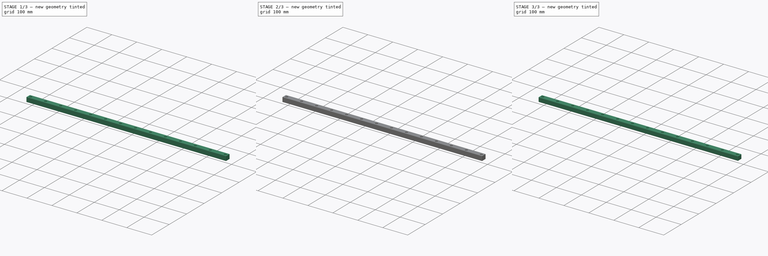
[diagram: build sequence overview — one tinted view per stage of 3, left to right]
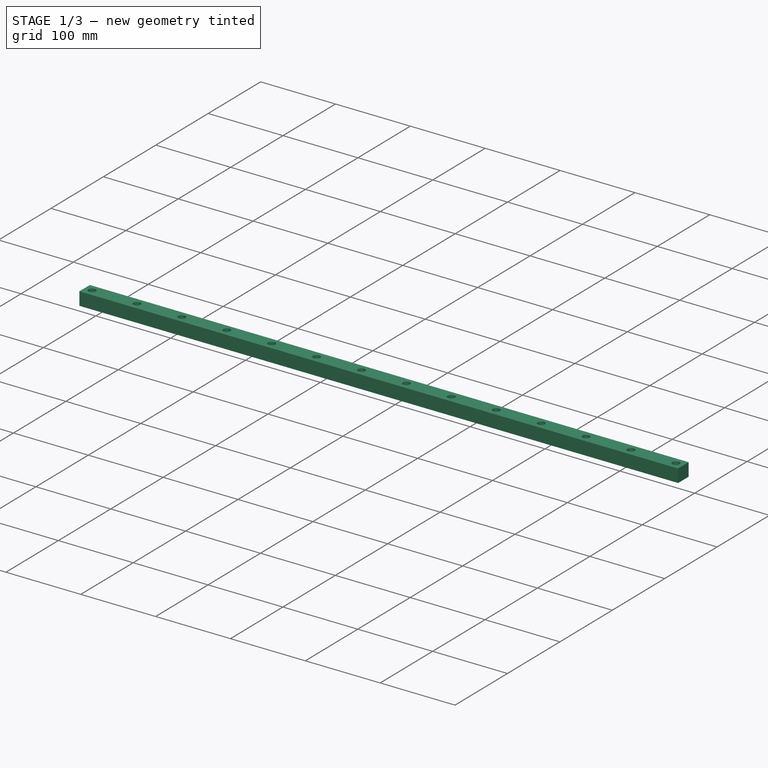
[diagram: stage 1 of 3 — iso view after this stage's code; geometry added in this stage tinted green]
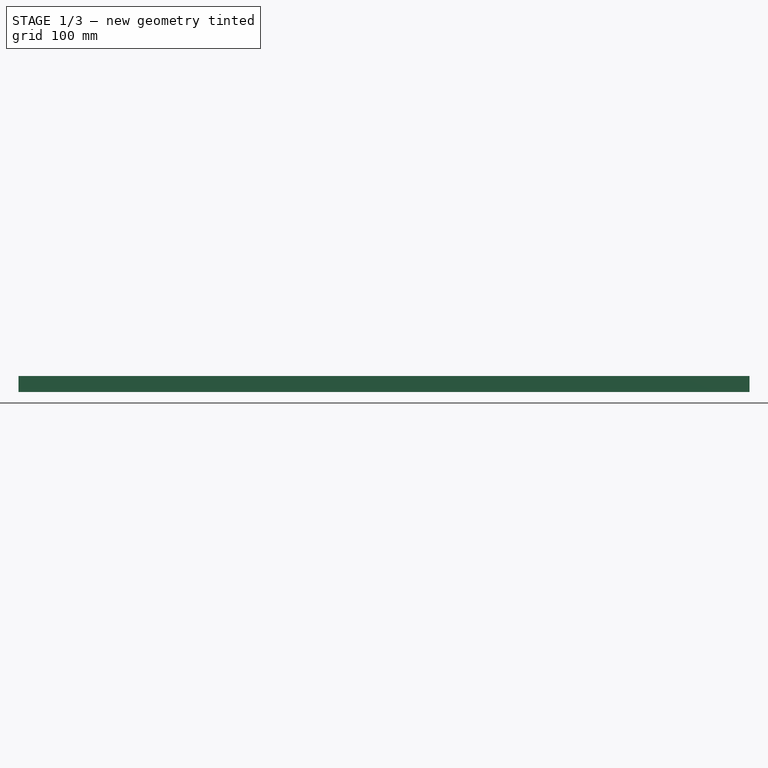
[diagram: stage 1 of 3 — front view after this stage's code; geometry added in this stage tinted green]
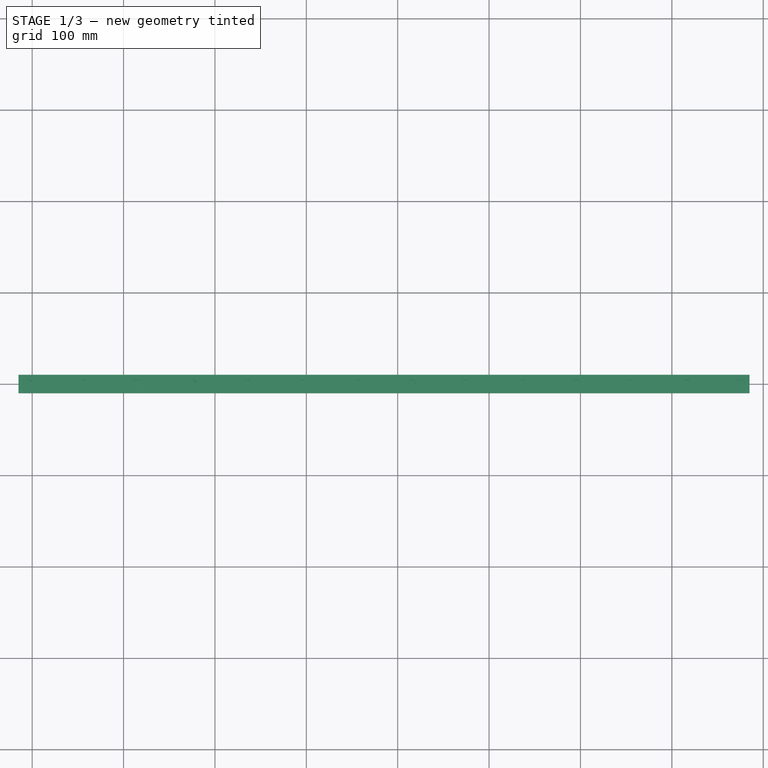
[diagram: stage 1 of 3 — top view after this stage's code; geometry added in this stage tinted green]
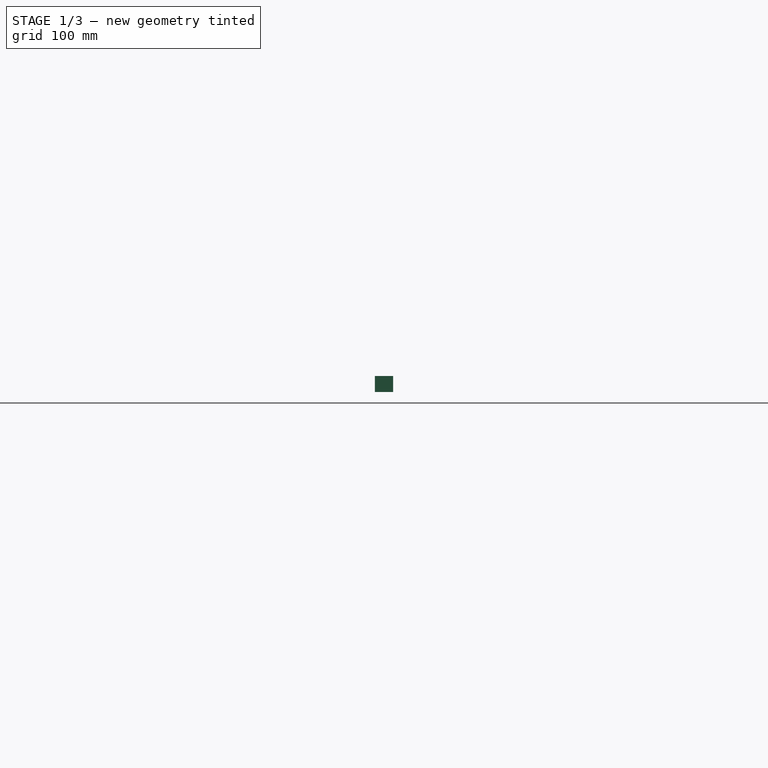
[diagram: stage 1 of 3 — right view after this stage's code; geometry added in this stage tinted green]
FCSTD DOCUMENT  (FreeCAD 0.19R24366 (Git))
Label: HGR20 slider rail 800mm
License: All rights reserved
LicenseURL: http://en.wikipedia.org/wiki/All_rights_reserved
objects: Sketcher::SketchObject×4, PartDesign::Pocket×3, PartDesign::Pad×1, PartDesign::Chamfer×1, PartDesign::Body×1
note: 15 computed .brp shape members not serialized (recipe doc carries the construction recipe); baked Part::Feature solids carry a one-line shape summary decoded from their .brp

FEATURE [Sketcher::SketchObject] Sketch  label="Basic rail profile"
  FullyConstrained = true
  MapMode = 5
  Support = -> [XY_Plane]
  sketch-geometry (4):
    g0: LineSegment StartX=-15 StartY=10 StartZ=0 EndX=785 EndY=10 EndZ=0
    g1: LineSegment StartX=785 StartY=10 StartZ=0 EndX=785 EndY=-10 EndZ=0
    g2: LineSegment StartX=785 StartY=-10 StartZ=0 EndX=-15 EndY=-10 EndZ=0
    g3: LineSegment StartX=-15 StartY=-10 StartZ=0 EndX=-15 EndY=10 EndZ=0
  constraints (11):
    c: Coincident(g0,g1)
    c: Coincident(g1,g2)
    c: Coincident(g2,g3)
    c: Coincident(g3,g0)
    c: Horizontal(g0)
    c: Vertical(g1)
    c: DistanceX(g2,g2) = 800  'LENGTH'
    c: Equal(g3,g1)
    c: Symmetric(g0,g2,g-1)
    c: DistanceX(g0,g-1) = 15
    c: DistanceY(g3,g3) = 20
FEATURE [PartDesign::Pad] Pad  label="Rail height"
  Direction = (1,1,1)
  Length = 17.5
  Length2 = 100
  Profile = -> Sketch
  Type = 0
FEATURE [Sketcher::SketchObject] Sketch001  label="Cap head holes"
  ExternalGeometry = -> [Pad]
  FullyConstrained = true
  MapMode = 5
  Placement = pos=(0,0,17.5) rot=(0,0,1;0rad)
  Support = -> [Pad]
  sketch-geometry (27):
    g0: Circle CenterX=-5 CenterY=0 CenterZ=0 NormalX=0 NormalY=0 NormalZ=1 AngleXU=0 Radius=4.75
    g1: Circle CenterX=55 CenterY=0 CenterZ=0 NormalX=0 NormalY=0 NormalZ=1 AngleXU=0 Radius=4.75
    g2: LineSegment StartX=-5 StartY=0 StartZ=0 EndX=55 EndY=0 EndZ=0
    g3: Circle CenterX=115 CenterY=-2.94e-14 CenterZ=0 NormalX=0 NormalY=0 NormalZ=1 AngleXU=0 Radius=4.75
    g4: LineSegment StartX=55 StartY=0 StartZ=0 EndX=115 EndY=-2.94e-14 EndZ=0
    g5: Circle CenterX=175 CenterY=-3.45e-14 CenterZ=0 NormalX=0 NormalY=0 NormalZ=1 AngleXU=0 Radius=4.75
    g6: LineSegment StartX=115 StartY=-2.94e-14 StartZ=0 EndX=175 EndY=-3.45e-14 EndZ=0
    g7: Circle CenterX=235 CenterY=-3.49e-14 CenterZ=0 NormalX=0 NormalY=0 NormalZ=1 AngleXU=0 Radius=4.75
    g8: LineSegment StartX=175 StartY=-3.45e-14 StartZ=0 EndX=235 EndY=-3.49e-14 EndZ=0
    g9: Circle CenterX=295 CenterY=-3.49e-14 CenterZ=0 NormalX=0 NormalY=0 NormalZ=1 AngleXU=0 Radius=4.75
    g10: LineSegment StartX=235 StartY=-3.49e-14 StartZ=0 EndX=295 EndY=-3.49e-14 EndZ=0
    g11: Circle CenterX=355 CenterY=-3.48e-14 CenterZ=0 NormalX=0 NormalY=0 NormalZ=1 AngleXU=0 Radius=4.75
    g12: LineSegment StartX=295 StartY=-3.49e-14 StartZ=0 EndX=355 EndY=-3.48e-14 EndZ=0
    g13: Circle CenterX=415 CenterY=-3.48e-14 CenterZ=0 NormalX=0 NormalY=0 NormalZ=1 AngleXU=0 Radius=4.75
    g14: LineSegment StartX=355 StartY=-3.48e-14 StartZ=0 EndX=415 EndY=-3.48e-14 EndZ=0
    g15: Circle CenterX=475 CenterY=-3.48e-14 CenterZ=0 NormalX=0 NormalY=0 NormalZ=1 AngleXU=0 Radius=4.75
    g16: LineSegment StartX=415 StartY=-3.48e-14 StartZ=0 EndX=475 EndY=-3.48e-14 EndZ=0
    g17: Circle CenterX=535 CenterY=-3.48e-14 CenterZ=0 NormalX=0 NormalY=0 NormalZ=1 AngleXU=0 Radius=4.75
    g18: LineSegment StartX=475 StartY=-3.48e-14 StartZ=0 EndX=535 EndY=-3.48e-14 EndZ=0
    g19: Circle CenterX=595 CenterY=-3.47e-14 CenterZ=0 NormalX=0 NormalY=0 NormalZ=1 AngleXU=0 Radius=4.75
    g20: LineSegment StartX=535 StartY=-3.48e-14 StartZ=0 EndX=595 EndY=-3.47e-14 EndZ=0
    g21: Circle CenterX=655 CenterY=-3.47e-14 CenterZ=0 NormalX=0 NormalY=0 NormalZ=1 AngleXU=0 Radius=4.75
    g22: LineSegment StartX=595 StartY=-3.47e-14 StartZ=0 EndX=655 EndY=-3.47e-14 EndZ=0
    g23: Circle CenterX=715 CenterY=-3.51e-14 CenterZ=0 NormalX=0 NormalY=0 NormalZ=1 AngleXU=0 Radius=4.75
    g24: LineSegment StartX=655 StartY=-3.47e-14 StartZ=0 EndX=715 EndY=-3.51e-14 EndZ=0
    g25: Circle CenterX=775 CenterY=-3.72e-14 CenterZ=0 NormalX=0 NormalY=0 NormalZ=1 AngleXU=0 Radius=4.75
    g26: LineSegment StartX=715 StartY=-3.51e-14 StartZ=0 EndX=775 EndY=-3.72e-14 EndZ=0
  constraints (70):
    c: PointOnObject(g0,g-1)
    c: Radius(g0) = 4.75  'D'
    c: Equal(g0,g1) = 3
    c: Coincident(g0,g2)
    c: Coincident(g1,g2)
    c: Angle(g2) = 0
    c: Equal(g0,g3) = 3
    c: Coincident(g1,g4)
    c: Coincident(g3,g4)
    c: Equal(g2,g4)
    c: Parallel(g4,g2)
    c: Equal(g0,g5) = 3
    c: Coincident(g3,g6)
    c: Coincident(g5,g6)
    c: Equal(g2,g6)
    c: Parallel(g6,g2)
    c: Equal(g0,g7) = 3
    c: Coincident(g5,g8)
    c: Coincident(g7,g8)
    c: Equal(g2,g8)
    c: Parallel(g8,g2)
    c: Equal(g0,g9) = 3
    c: Coincident(g7,g10)
    c: Coincident(g9,g10)
    c: Equal(g2,g10)
    c: Parallel(g10,g2)
    c: Equal(g0,g11) = 3
    c: Coincident(g9,g12)
    c: Coincident(g11,g12)
    c: Equal(g2,g12)
    c: Parallel(g12,g2)
    c: Equal(g0,g13) = 3
    c: Coincident(g11,g14)
    c: Coincident(g13,g14)
    c: Equal(g2,g14)
    c: Parallel(g14,g2)
    c: Equal(g0,g15) = 3
    c: Coincident(g13,g16)
    c: Coincident(g15,g16)
    c: Equal(g2,g16)
    c: Parallel(g16,g2)
    c: Equal(g0,g17) = 3
    c: Coincident(g15,g18)
    c: Coincident(g17,g18)
    c: Equal(g2,g18)
    c: Parallel(g18,g2)
    c: Equal(g0,g19) = 3
    c: Coincident(g17,g20)
    c: Coincident(g19,g20)
    c: Equal(g2,g20)
    c: Parallel(g20,g2)
    c: Equal(g0,g21) = 3
    c: Coincident(g19,g22)
    c: Coincident(g21,g22)
    c: Equal(g2,g22)
    c: Parallel(g22,g2)
    c: Equal(g0,g23) = 3
    c: Coincident(g21,g24)
    c: Coincident(g23,g24)
    c: Equal(g2,g24)
    c: Parallel(g24,g2)
    c: Equal(g0,g25) = 3
    c: Coincident(g23,g26)
    c: Coincident(g25,g26)
    c: Equal(g2,g26)
    c: Parallel(g26,g2)
    c: DistanceX(g0,g1) = 60  'P'
    c: DistanceX(g25,g-3) = 10
    c: DistanceX(g0,g-1) = 5
    c: DistanceX(g-4,g0) = 10
FEATURE [PartDesign::Pocket] Pocket  label="Cap head hole depth"
  BaseFeature = -> Pad
  Length = 8.5
  Length2 = 100
  Profile = -> Sketch001
  Type = 0
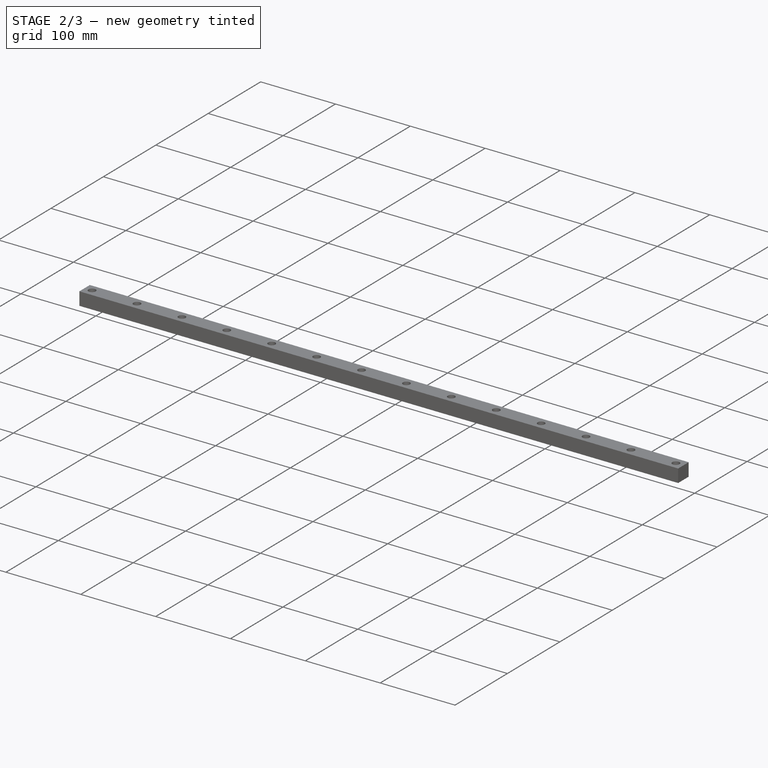
[diagram: stage 2 of 3 — iso view after this stage's code; geometry added in this stage tinted green]
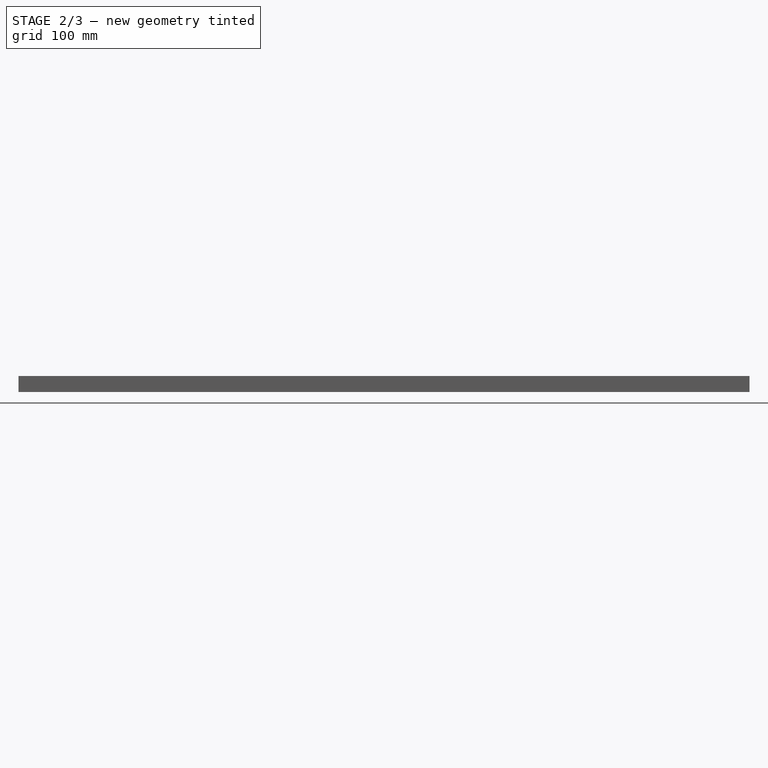
[diagram: stage 2 of 3 — front view after this stage's code; geometry added in this stage tinted green]
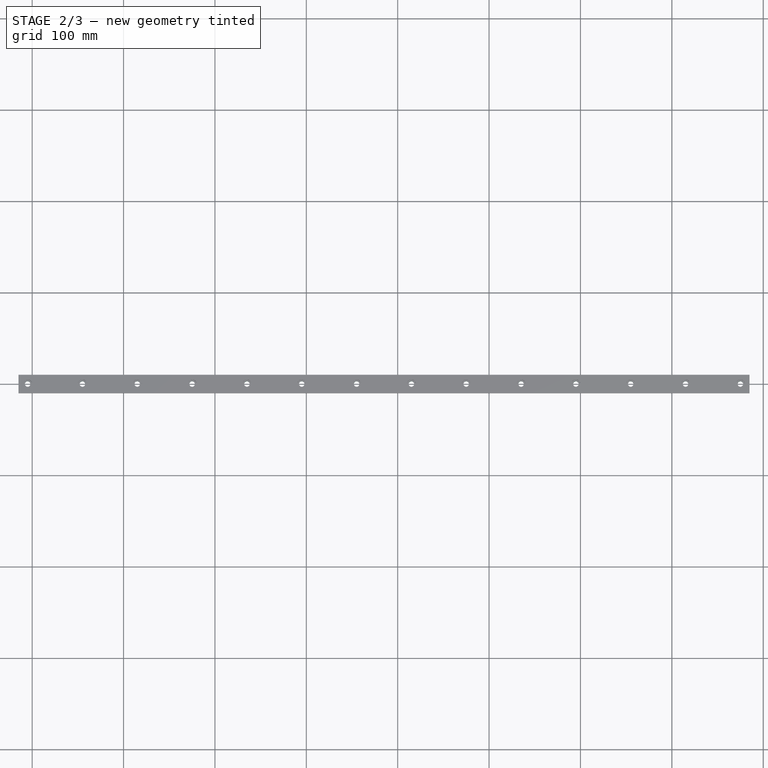
[diagram: stage 2 of 3 — top view after this stage's code; geometry added in this stage tinted green]
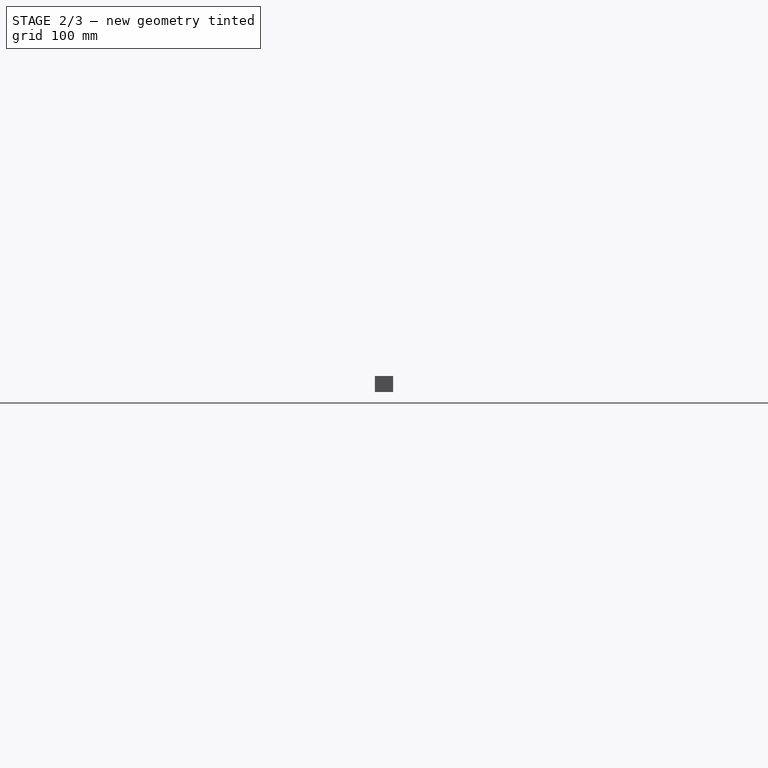
[diagram: stage 2 of 3 — right view after this stage's code; geometry added in this stage tinted green]
FEATURE [Sketcher::SketchObject] Sketch002  label="Through holes"
  FullyConstrained = true
  MapMode = 5
  Placement = pos=(0,0,17.5) rot=(0,0,1;0rad)
  Support = -> [Pocket]
  sketch-geometry (27):
    g0: Circle CenterX=-5 CenterY=0 CenterZ=0 NormalX=0 NormalY=0 NormalZ=1 AngleXU=0 Radius=3
    g1: Circle CenterX=55 CenterY=1e-16 CenterZ=0 NormalX=0 NormalY=0 NormalZ=1 AngleXU=0 Radius=3
    g2: LineSegment StartX=-5 StartY=0 StartZ=0 EndX=55 EndY=1e-16 EndZ=0
    g3: Circle CenterX=115 CenterY=4e-16 CenterZ=0 NormalX=0 NormalY=0 NormalZ=1 AngleXU=0 Radius=3
    g4: LineSegment StartX=55 StartY=1e-16 StartZ=0 EndX=115 EndY=4e-16 EndZ=0
    g5: Circle CenterX=175 CenterY=5e-16 CenterZ=0 NormalX=0 NormalY=0 NormalZ=1 AngleXU=0 Radius=3
    g6: LineSegment StartX=115 StartY=4e-16 StartZ=0 EndX=175 EndY=5e-16 EndZ=0
    g7: Circle CenterX=235 CenterY=6e-16 CenterZ=0 NormalX=0 NormalY=0 NormalZ=1 AngleXU=0 Radius=3
    g8: LineSegment StartX=175 StartY=5e-16 StartZ=0 EndX=235 EndY=6e-16 EndZ=0
    g9: Circle CenterX=295 CenterY=7e-16 CenterZ=0 NormalX=0 NormalY=0 NormalZ=1 AngleXU=0 Radius=3
    g10: LineSegment StartX=235 StartY=6e-16 StartZ=0 EndX=295 EndY=7e-16 EndZ=0
    g11: Circle CenterX=355 CenterY=8e-16 CenterZ=0 NormalX=0 NormalY=0 NormalZ=1 AngleXU=0 Radius=3
    g12: LineSegment StartX=295 StartY=7e-16 StartZ=0 EndX=355 EndY=8e-16 EndZ=0
    g13: Circle CenterX=415 CenterY=9e-16 CenterZ=0 NormalX=0 NormalY=0 NormalZ=1 AngleXU=0 Radius=3
    g14: LineSegment StartX=355 StartY=8e-16 StartZ=0 EndX=415 EndY=9e-16 EndZ=0
    g15: Circle CenterX=475 CenterY=1e-15 CenterZ=0 NormalX=0 NormalY=0 NormalZ=1 AngleXU=0 Radius=3
    g16: LineSegment StartX=415 StartY=9e-16 StartZ=0 EndX=475 EndY=1e-15 EndZ=0
    g17: Circle CenterX=535 CenterY=1.2e-15 CenterZ=0 NormalX=0 NormalY=0 NormalZ=1 AngleXU=0 Radius=3
    g18: LineSegment StartX=475 StartY=1e-15 StartZ=0 EndX=535 EndY=1.2e-15 EndZ=0
    g19: Circle CenterX=595 CenterY=1.3e-15 CenterZ=0 NormalX=0 NormalY=0 NormalZ=1 AngleXU=0 Radius=3
    g20: LineSegment StartX=535 StartY=1.2e-15 StartZ=0 EndX=595 EndY=1.3e-15 EndZ=0
    g21: Circle CenterX=655 CenterY=1.4e-15 CenterZ=0 NormalX=0 NormalY=0 NormalZ=1 AngleXU=0 Radius=3
    g22: LineSegment StartX=595 StartY=1.3e-15 StartZ=0 EndX=655 EndY=1.4e-15 EndZ=0
    g23: Circle CenterX=715 CenterY=1.5e-15 CenterZ=0 NormalX=0 NormalY=0 NormalZ=1 AngleXU=0 Radius=3
    g24: LineSegment StartX=655 StartY=1.4e-15 StartZ=0 EndX=715 EndY=1.5e-15 EndZ=0
    g25: Circle CenterX=775 CenterY=1.6e-15 CenterZ=0 NormalX=0 NormalY=0 NormalZ=1 AngleXU=0 Radius=3
    g26: LineSegment StartX=715 StartY=1.5e-15 StartZ=0 EndX=775 EndY=1.6e-15 EndZ=0
  constraints (68):
    c: PointOnObject(g0,g-1)
    c: Radius(g0) = 3  'd'
    c: Equal(g0,g1) = 1.75
    c: Coincident(g0,g2)
    c: Coincident(g1,g2)
    c: Angle(g2) = 0
    c: Equal(g0,g3) = 1.75
    c: Coincident(g1,g4)
    c: Coincident(g3,g4)
    c: Equal(g2,g4)
    c: Parallel(g4,g2)
    c: Equal(g0,g5) = 1.75
    c: Coincident(g3,g6)
    c: Coincident(g5,g6)
    c: Equal(g2,g6)
    c: Parallel(g6,g2)
    c: Equal(g0,g7) = 1.75
    c: Coincident(g5,g8)
    c: Coincident(g7,g8)
    c: Equal(g2,g8)
    c: Parallel(g8,g2)
    c: Equal(g0,g9) = 1.75
    c: Coincident(g7,g10)
    c: Coincident(g9,g10)
    c: Equal(g2,g10)
    c: Parallel(g10,g2)
    c: Equal(g0,g11) = 1.75
    c: Coincident(g9,g12)
    c: Coincident(g11,g12)
    c: Equal(g2,g12)
    c: Parallel(g12,g2)
    c: Equal(g0,g13) = 1.75
    c: Coincident(g11,g14)
    c: Coincident(g13,g14)
    c: Equal(g2,g14)
    c: Parallel(g14,g2)
    c: Equal(g0,g15) = 1.75
    c: Coincident(g13,g16)
    c: Coincident(g15,g16)
    c: Equal(g2,g16)
    c: Parallel(g16,g2)
    c: Equal(g0,g17) = 1.75
    c: Coincident(g15,g18)
    c: Coincident(g17,g18)
    c: Equal(g2,g18)
    c: Parallel(g18,g2)
    c: Equal(g0,g19) = 1.75
    c: Coincident(g17,g20)
    c: Coincident(g19,g20)
    c: Equal(g2,g20)
    c: Parallel(g20,g2)
    c: Equal(g0,g21) = 1.75
    c: Coincident(g19,g22)
    c: Coincident(g21,g22)
    c: Equal(g2,g22)
    c: Parallel(g22,g2)
    c: Equal(g0,g23) = 1.75
    c: Coincident(g21,g24)
    c: Coincident(g23,g24)
    c: Equal(g2,g24)
    c: Parallel(g24,g2)
    c: Equal(g0,g25) = 1.75
    c: Coincident(g23,g26)
    c: Coincident(g25,g26)
    c: Equal(g2,g26)
    c: Parallel(g26,g2)
    c: DistanceX(g0,g1) = 60  'P'
    c: DistanceX(g0,g-1) = 5
FEATURE [PartDesign::Pocket] Pocket001  label="Through hole depth"
  BaseFeature = -> Pocket
  Length = 5
  Length2 = 100
  Profile = -> Sketch002
  Type = 1
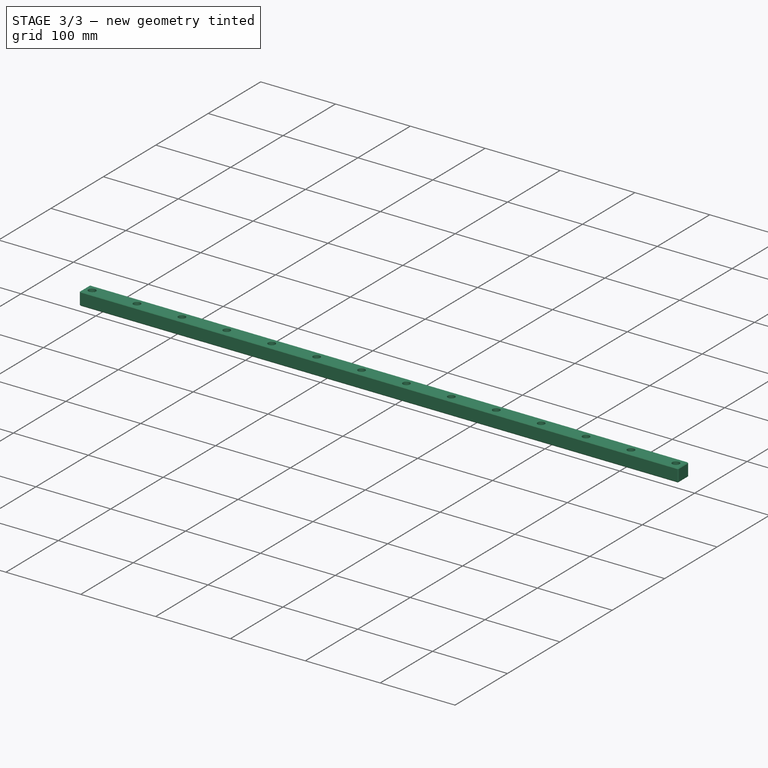
[diagram: stage 3 of 3 — iso view after this stage's code; geometry added in this stage tinted green]
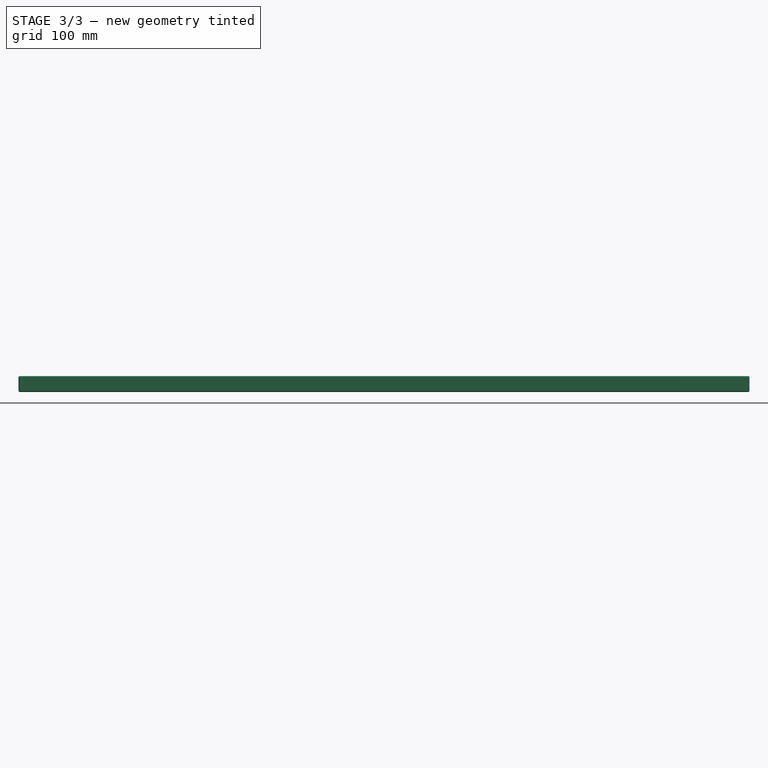
[diagram: stage 3 of 3 — front view after this stage's code; geometry added in this stage tinted green]
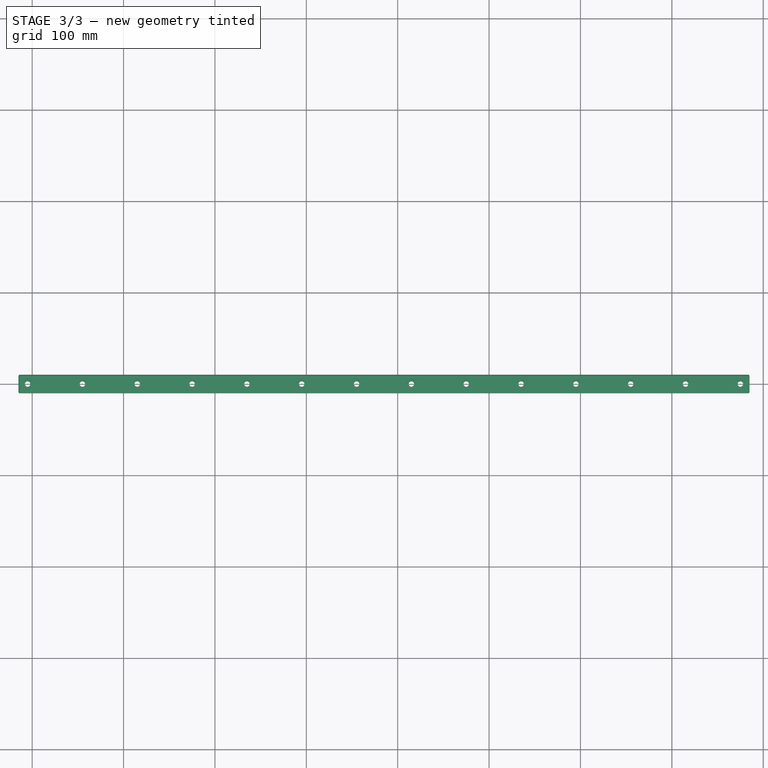
[diagram: stage 3 of 3 — top view after this stage's code; geometry added in this stage tinted green]
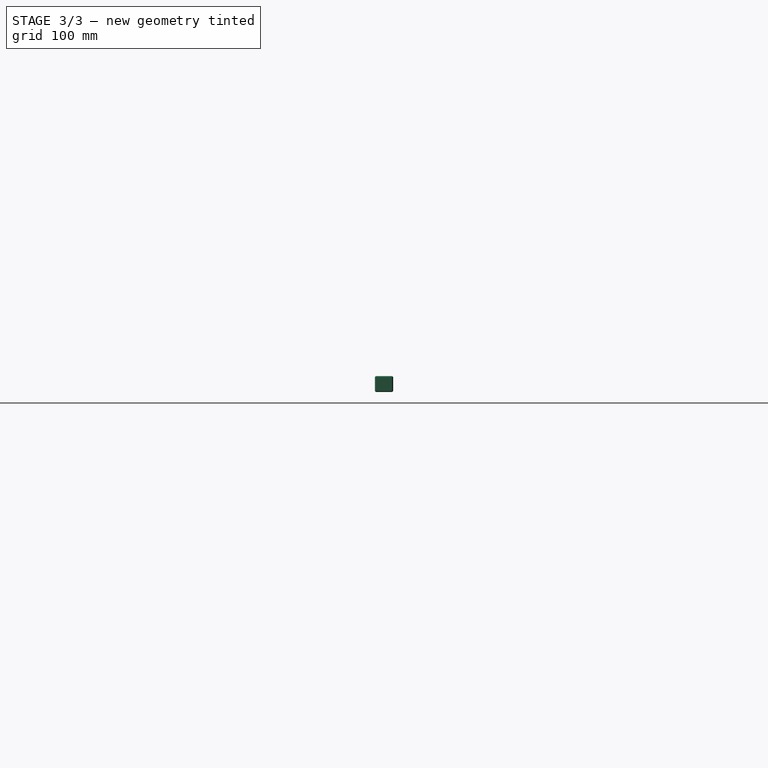
[diagram: stage 3 of 3 — right view after this stage's code; geometry added in this stage tinted green]
FEATURE [PartDesign::Chamfer] Chamfer  label="Edge chamfers"
  Angle = 45
  Base = -> Pocket001 [Edge10,Edge8,Edge9,Edge2,Edge4,Edge11,Edge3,Edge1,Edge7,Edge5,Edge6,Edge26]
  BaseFeature = -> Pocket001
  ChamferType = 0
  FlipDirection = false
  Size = 1
  Size2 = 1
  SupportTransform = false
FEATURE [Sketcher::SketchObject] Sketch003  label="Reference face -15mm"
  FullyConstrained = true
  MapMode = 5
  Placement = pos=(0,0,0) rot=(0.57735,0.57735,0.57735;2.0944rad)
  Support = -> [YZ_Plane]
  sketch-geometry (4):
    g0: LineSegment StartX=2.5 StartY=17.5 StartZ=0 EndX=-2.5 EndY=17.5 EndZ=0
    g1: LineSegment StartX=-2.5 StartY=17.5 StartZ=0 EndX=-2.5 EndY=12.5 EndZ=0
    g2: LineSegment StartX=-2.5 StartY=12.5 StartZ=0 EndX=2.5 EndY=12.5 EndZ=0
    g3: LineSegment StartX=2.5 StartY=12.5 StartZ=0 EndX=2.5 EndY=17.5 EndZ=0
  constraints (11):
    c: Coincident(g0,g1)
    c: Coincident(g1,g2)
    c: Coincident(g2,g3)
    c: Coincident(g3,g0)
    c: Horizontal(g0)
    c: Vertical(g1)
    c: Vertical(g3)
    c: Symmetric(g1,g2,g-2)
    c: Equal(g0,g3)
    c: DistanceX(g0,g0) = 5
    c: DistanceY(g-1,g0) = 17.5
FEATURE [PartDesign::Pocket] Pocket002  label="Reference face hidden plane"
  BaseFeature = -> Chamfer
  Length = 4
  Length2 = 100
  Profile = -> Sketch003
  Type = 0
FEATURE [PartDesign::Body] Body
  Group = -> [Sketch,Pad,Sketch001,Pocket,Sketch002,Pocket001,Chamfer,Sketch003,Pocket002]
  Origin = -> Origin
  Tip = -> Pocket002
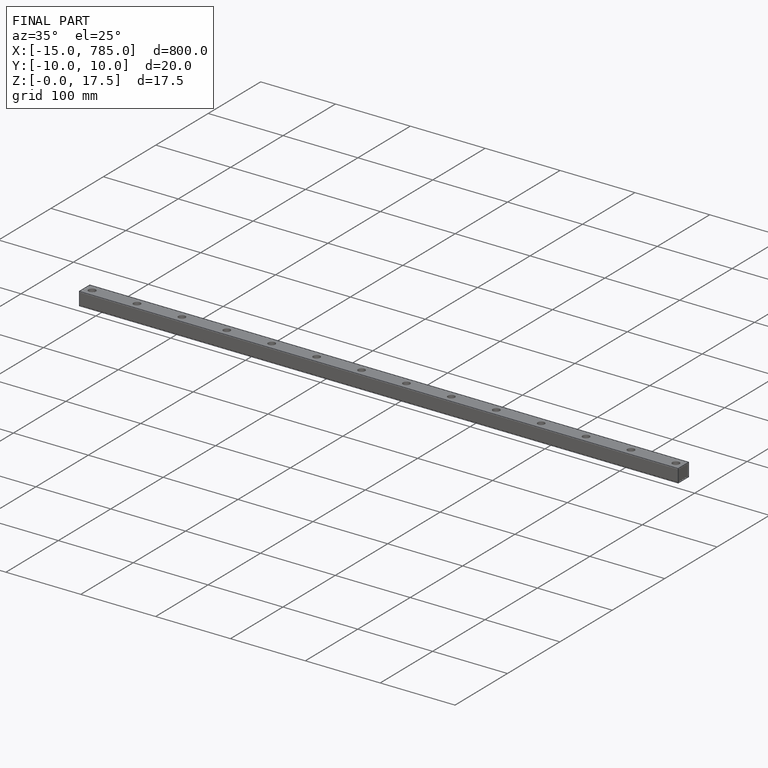
[diagram: finished part — iso view with bounding-box wireframe]
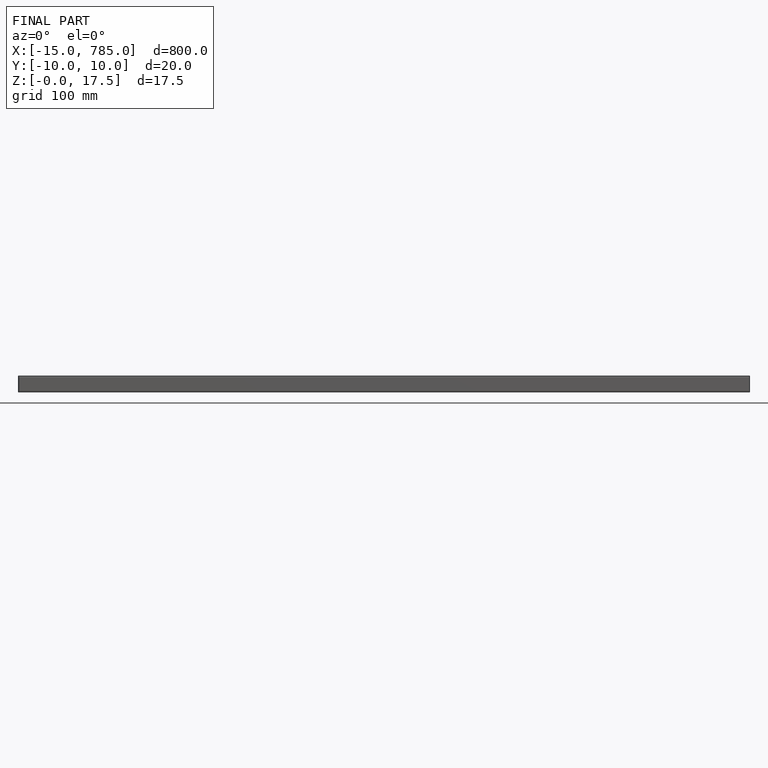
[diagram: finished part — front view with bounding-box wireframe]
